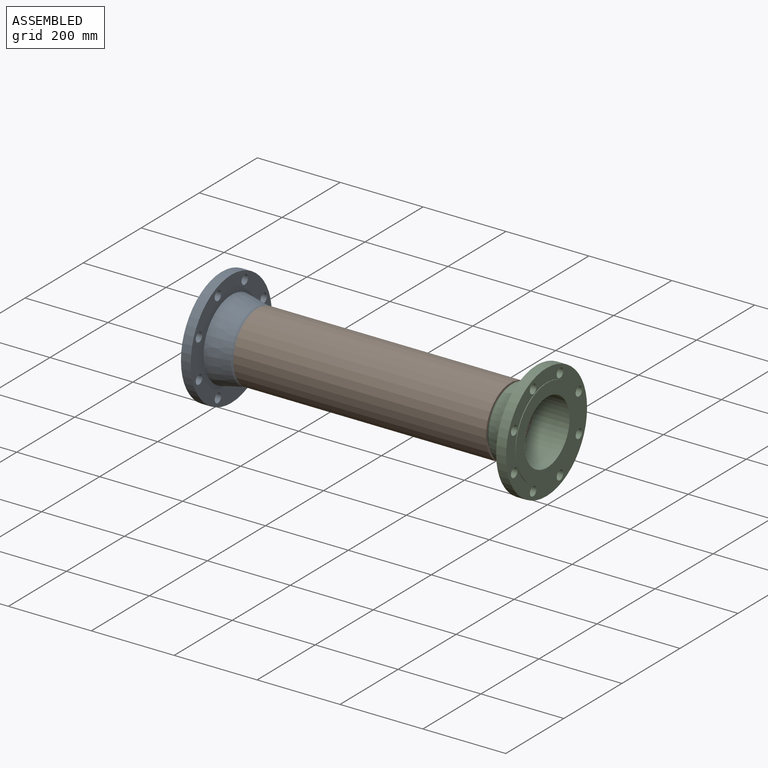
[diagram: assembled view]
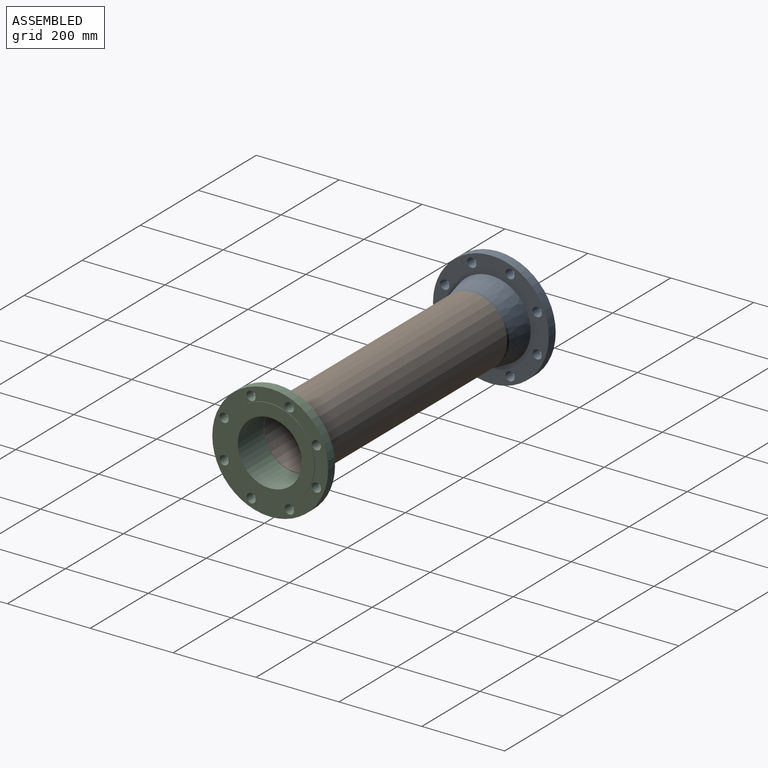
[diagram: assembled view, second angle]
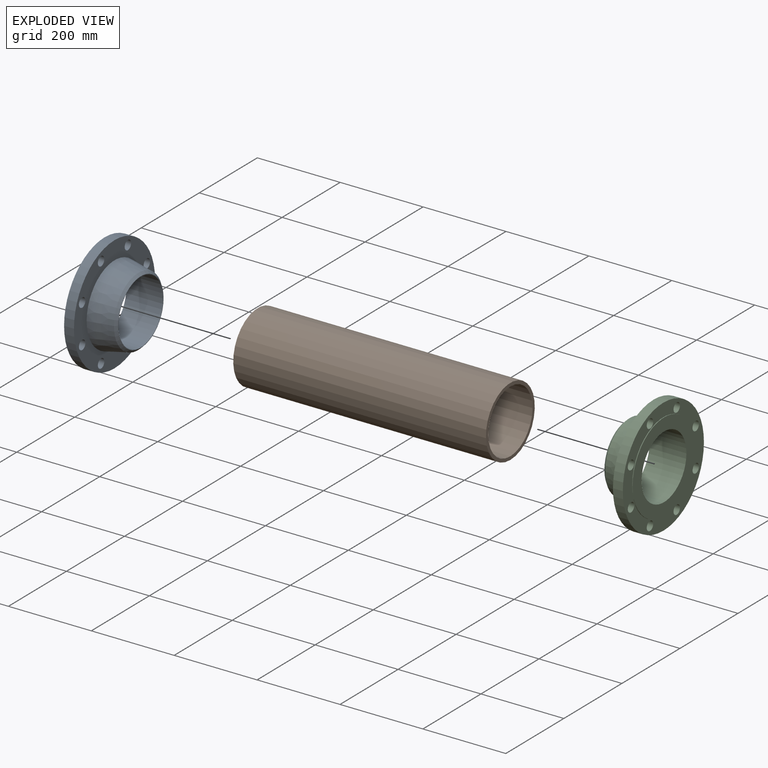
[diagram: exploded view]
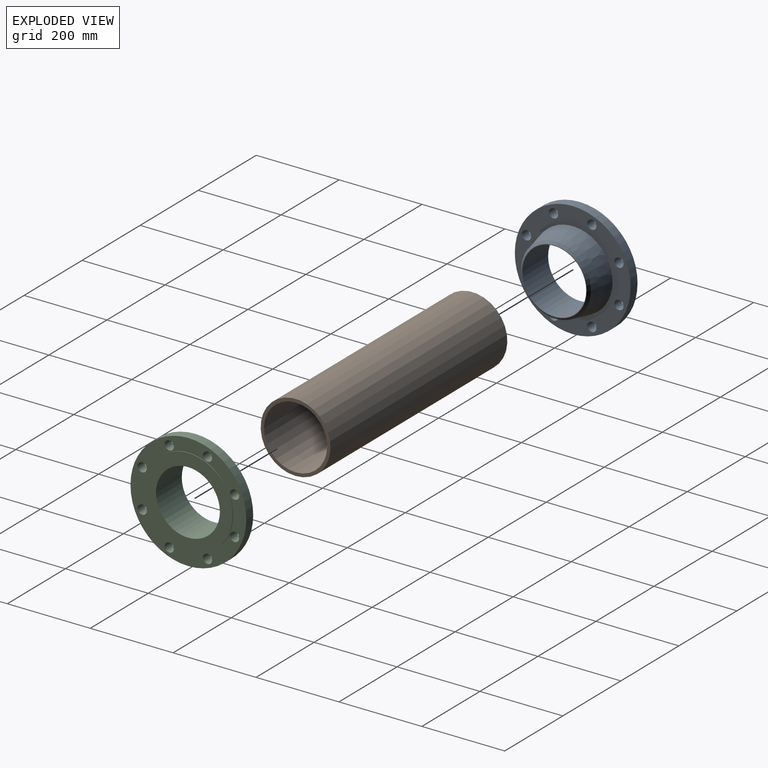
[diagram: exploded view, second angle]
ASSEMBLY  parts=3 mates=2
PART A: 18 faces, bbox 279.4x279.4x88.9 mm
  f0: cylinder r=139.7mm len=279.4mm, axis (0,0,1), area 20901.7mm2, adj f1,f9
  f1: plane 279.4x279.4mm, normal (0,0,-1), area 21598.4mm2, adj f0,f2,f10,f11,f12,f13,f14,f15
  f2: cylinder r=107.95mm len=215.9mm, axis (0,0,1), area 1076.8mm2, adj f1,f3
  f3: plane 215.9x215.9mm, normal (0,0,-1), area 17940mm2, adj f2,f4
  f4: cylinder r=77.09mm len=154.18mm, axis (0,0,1), area 43060mm2, adj f3,f5
  f5: plane 156.72x156.72mm, normal (0,0,1), area 620.2mm2, adj f4,f6
  f6: cone r=78.36mm half-angle=45deg, axis (0,0,-1), area 4219.3mm2, adj f5,f7
  f7: cone r=84.2mm half-angle=10deg, axis (0,0,-1), area 7193.6mm2, adj f6,f8
  f8: cone r=86.53mm half-angle=12deg, axis (0,0,-1), area 26064.4mm2, adj f7,f9
  f9: plane 279.4x279.4mm, normal (0,0,1), area 29247.9mm2, adj f0,f8,f10,f11,f12,f13,f14,f15
  f10: cylinder r=11.11mm len=23.81mm, axis (0,0,-1), area 1662.6mm2, adj f1,f9
  f11: cylinder r=11.11mm len=23.81mm, axis (0,0,-1), area 1662.6mm2, adj f1,f9
  f12: cylinder r=11.11mm len=23.81mm, axis (0,0,-1), area 1662.6mm2, adj f1,f9
  f13: cylinder r=11.11mm len=23.81mm, axis (0,0,-1), area 1662.6mm2, adj f1,f9
  f14: cylinder r=11.11mm len=23.81mm, axis (0,0,-1), area 1662.6mm2, adj f1,f9
  f15: cylinder r=11.11mm len=23.81mm, axis (0,0,-1), area 1662.6mm2, adj f1,f9
  f16: cylinder r=11.11mm len=23.81mm, axis (0,0,-1), area 1662.6mm2, adj f1,f9
  f17: cylinder r=11.11mm len=23.81mm, axis (0,0,-1), area 1662.6mm2, adj f1,f9
PART B: 4 faces, bbox 609.6x168.3x168.3 mm
  f0: cylinder r=76.2mm len=609.6mm, axis (-1,0,0), area 291863.5mm2, adj f2,f3
  f1: cylinder r=84.14mm len=609.6mm, axis (-1,0,0), area 322266mm2, adj f2,f3
  f2: plane 168.28x168.28mm, normal (1,0,0), area 3998.2mm2, adj f0,f1
  f3: plane 168.28x168.28mm, normal (-1,0,0), area 3998.2mm2, adj f0,f1
PART C: same geometry as A
PLACE A rot(axis=(0,1,0),90deg) t=(-393.7,8.57,0)mm
PLACE B t=(-304.8,8.57,0)mm
PLACE C rot(axis=(0.71,0,-0.71),180deg) t=(393.7,8.57,0)mm
MATE fastened A.f8 <-> B.f1  axis (1,0,0) through (-304.8,8.57,0)mm
MATE fastened C.f0 <-> B.f0  axis (-1,0,0) through (304.8,8.57,0)mm
